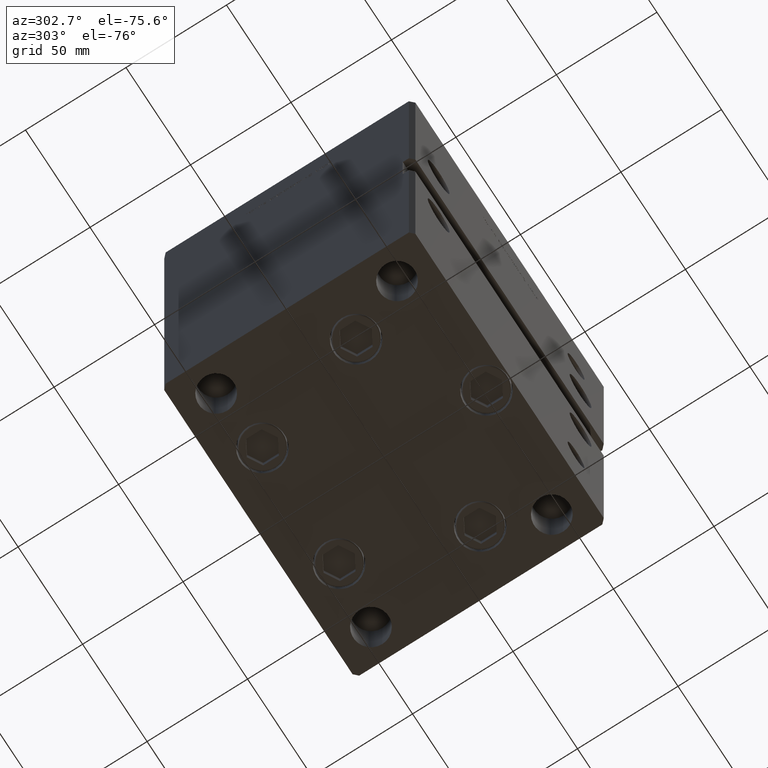
[diagram: clean part render]
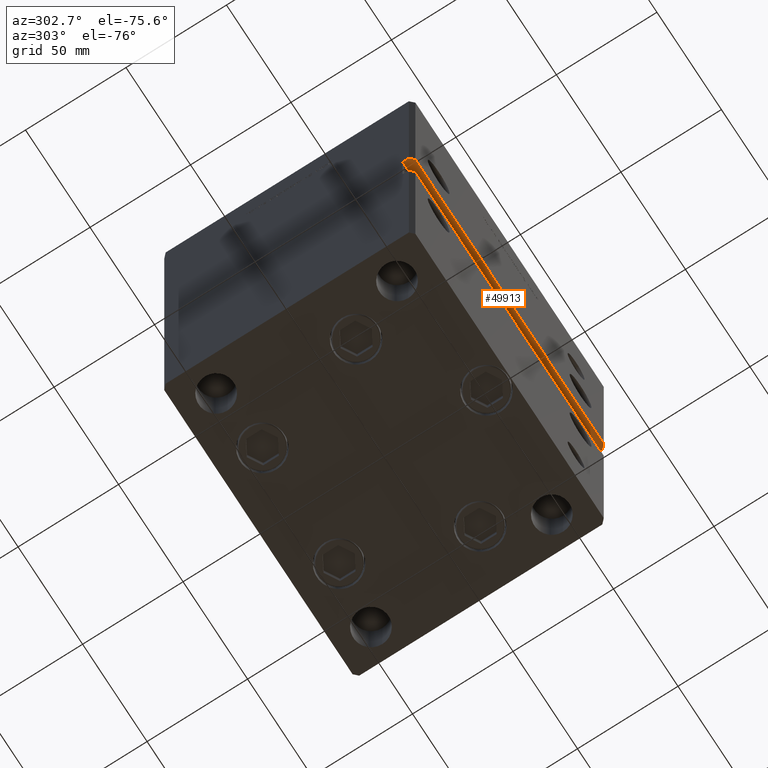
[diagram: same view with one face highlighted and labeled with its STEP entity id]
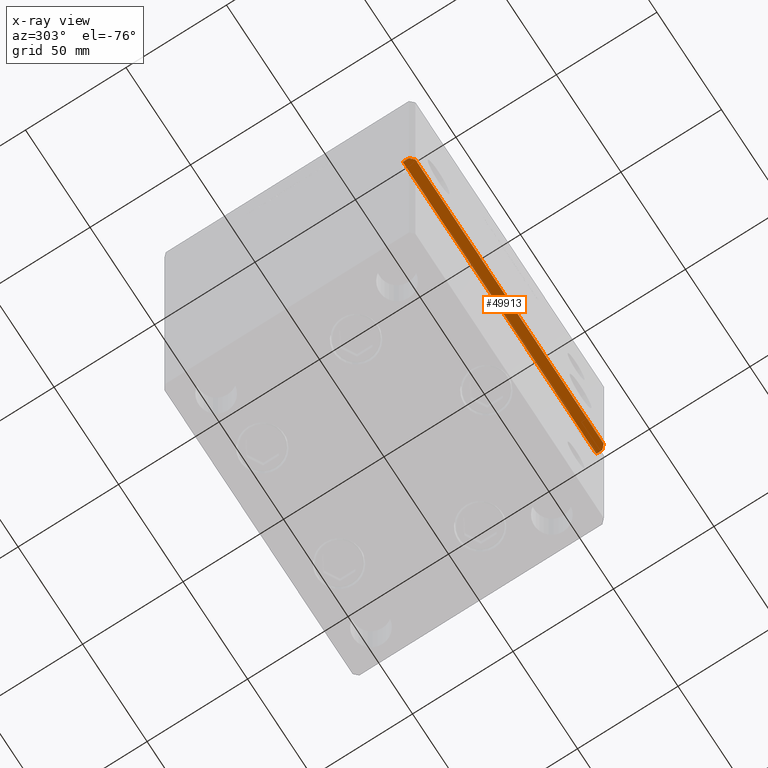
[diagram: x-ray of the same camera — body ghosted, the highlighted face saturated]
A machine part, auxiliary view. The second image highlights one B-rep face of the part: STEP entity #49913.
The next image is the same camera in x-ray: the body ghosted, the highlighted face saturated — about 8% of this face is hidden behind the body in this view.
In plain terms, the highlighted planar face has unit normal (0, 0, 1).
Its self-contained STEP definition (entity closure, byte-faithful):
#1489 = CARTESIAN_POINT ( 'NONE',  ( -74.99999999999998579, -57.50000000000000000, 98.00000000000000000 ) ) ;
#4136 = VECTOR ( 'NONE', #32921, 1000.000000000000000 ) ;
#4758 = CARTESIAN_POINT ( 'NONE',  ( -72.99999999999998579, -62.50000000000000000, 98.00000000000000000 ) ) ;
#4834 = CARTESIAN_POINT ( 'NONE',  ( 74.99999999999998579, -57.50000000000000000, 98.00000000000000000 ) ) ;
#5053 = EDGE_LOOP ( 'NONE', ( #31818, #13407, #5603, #21211, #23775, #10083 ) ) ;
#5503 = VERTEX_POINT ( 'NONE', #4758 ) ;
#5603 = ORIENTED_EDGE ( 'NONE', *, *, #13623, .T. ) ;
#7021 = DIRECTION ( 'NONE',  ( -0.000000000000000000, -1.000000000000000000, -0.000000000000000000 ) ) ;
#8254 = DIRECTION ( 'NONE',  ( 1.000000000000000000, 0.000000000000000000, -0.000000000000000000 ) ) ;
#9542 = DIRECTION ( 'NONE',  ( -1.000000000000000000, -0.000000000000000000, -0.000000000000000000 ) ) ;
#9793 = LINE ( 'NONE', #1489, #4136 ) ;
#10083 = ORIENTED_EDGE ( 'NONE', *, *, #35888, .F. ) ;
#10166 = AXIS2_PLACEMENT_3D ( 'NONE', #52487, #44952, #8254 ) ;
#11173 = VERTEX_POINT ( 'NONE', #27991 ) ;
#13407 = ORIENTED_EDGE ( 'NONE', *, *, #48720, .F. ) ;
#13623 = EDGE_CURVE ( 'NONE', #13789, #22549, #20157, .T. ) ;
#13789 = VERTEX_POINT ( 'NONE', #4834 ) ;
#13990 = CARTESIAN_POINT ( 'NONE',  ( 74.99999999999998579, -60.50000000000000000, 98.00000000000000000 ) ) ;
#16629 = DIRECTION ( 'NONE',  ( -0.7071067811865474617, -0.7071067811865474617, 0.000000000000000000 ) ) ;
#17421 = LINE ( 'NONE', #37502, #25049 ) ;
#17793 = CARTESIAN_POINT ( 'NONE',  ( -74.99999999999998579, -60.50000000000000000, 98.00000000000000000 ) ) ;
#18781 = VECTOR ( 'NONE', #7021, 1000.000000000000000 ) ;
#20157 = LINE ( 'NONE', #39965, #18781 ) ;
#20613 = EDGE_CURVE ( 'NONE', #47048, #5503, #30707, .T. ) ;
#20799 = EDGE_CURVE ( 'NONE', #45613, #11173, #51289, .T. ) ;
#21211 = ORIENTED_EDGE ( 'NONE', *, *, #28947, .T. ) ;
#22143 = CARTESIAN_POINT ( 'NONE',  ( -74.99999999999998579, -62.50000000000000000, 98.00000000000000000 ) ) ;
#22549 = VERTEX_POINT ( 'NONE', #13990 ) ;
#22598 = LINE ( 'NONE', #17793, #48386 ) ;
#23775 = ORIENTED_EDGE ( 'NONE', *, *, #20613, .T. ) ;
#25049 = VECTOR ( 'NONE', #16629, 1000.000000000000114 ) ;
#27991 = CARTESIAN_POINT ( 'NONE',  ( -74.99999999999998579, -60.50000000000000000, 98.00000000000000000 ) ) ;
#28947 = EDGE_CURVE ( 'NONE', #22549, #47048, #17421, .T. ) ;
#30707 = LINE ( 'NONE', #22143, #41187 ) ;
#31171 = CARTESIAN_POINT ( 'NONE',  ( -74.99999999999998579, -57.50000000000000000, 98.00000000000000000 ) ) ;
#31818 = ORIENTED_EDGE ( 'NONE', *, *, #20799, .F. ) ;
#32921 = DIRECTION ( 'NONE',  ( -1.000000000000000000, -0.000000000000000000, -0.000000000000000000 ) ) ;
#35888 = EDGE_CURVE ( 'NONE', #11173, #5503, #22598, .T. ) ;
#37502 = CARTESIAN_POINT ( 'NONE',  ( 74.99999999999998579, -60.50000000000000000, 98.00000000000000000 ) ) ;
#38139 = DIRECTION ( 'NONE',  ( 0.7071067811865474617, -0.7071067811865474617, 0.000000000000000000 ) ) ;
#38615 = VECTOR ( 'NONE', #52089, 1000.000000000000000 ) ;
#39965 = CARTESIAN_POINT ( 'NONE',  ( 74.99999999999998579, -57.50000000000000000, 98.00000000000000000 ) ) ;
#41187 = VECTOR ( 'NONE', #9542, 1000.000000000000000 ) ;
#44279 = CARTESIAN_POINT ( 'NONE',  ( -74.99999999999998579, -57.50000000000000000, 98.00000000000000000 ) ) ;
#44952 = DIRECTION ( 'NONE',  ( 0.000000000000000000, 0.000000000000000000, 1.000000000000000000 ) ) ;
#45613 = VERTEX_POINT ( 'NONE', #44279 ) ;
#47048 = VERTEX_POINT ( 'NONE', #52969 ) ;
#48386 = VECTOR ( 'NONE', #38139, 1000.000000000000114 ) ;
#48720 = EDGE_CURVE ( 'NONE', #13789, #45613, #9793, .T. ) ;
#48986 = PLANE ( 'NONE',  #10166 ) ;
#49913 = ADVANCED_FACE ( 'NONE', ( #51964 ), #48986, .F. ) ;
#51289 = LINE ( 'NONE', #31171, #38615 ) ;
#51964 = FACE_OUTER_BOUND ( 'NONE', #5053, .T. ) ;
#52089 = DIRECTION ( 'NONE',  ( -0.000000000000000000, -1.000000000000000000, -0.000000000000000000 ) ) ;
#52487 = CARTESIAN_POINT ( 'NONE',  ( -74.99999999999998579, -57.50000000000000000, 98.00000000000000000 ) ) ;
#52969 = CARTESIAN_POINT ( 'NONE',  ( 72.99999999999998579, -62.50000000000000000, 98.00000000000000000 ) ) ;